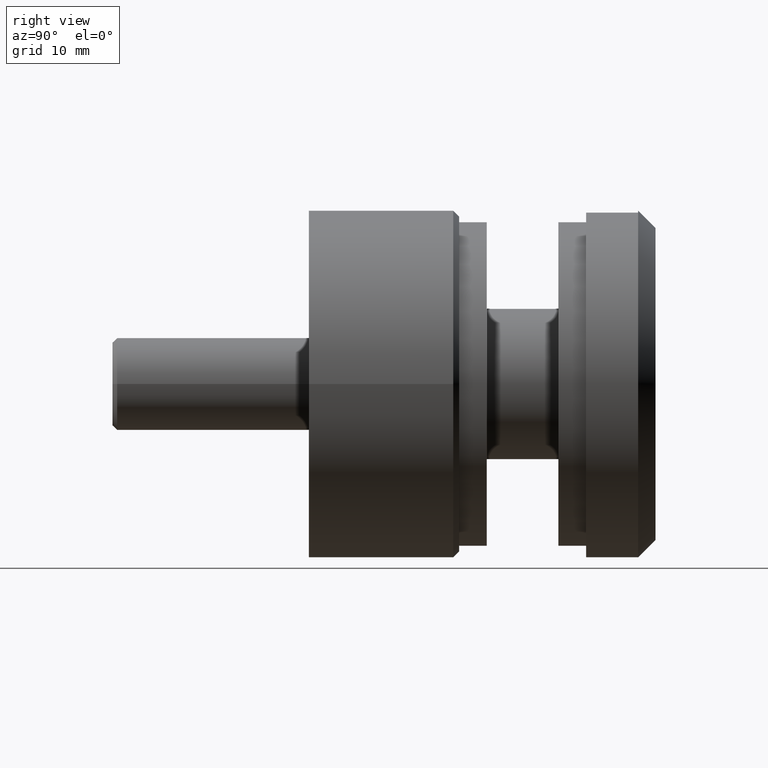
[diagram: clean part render]
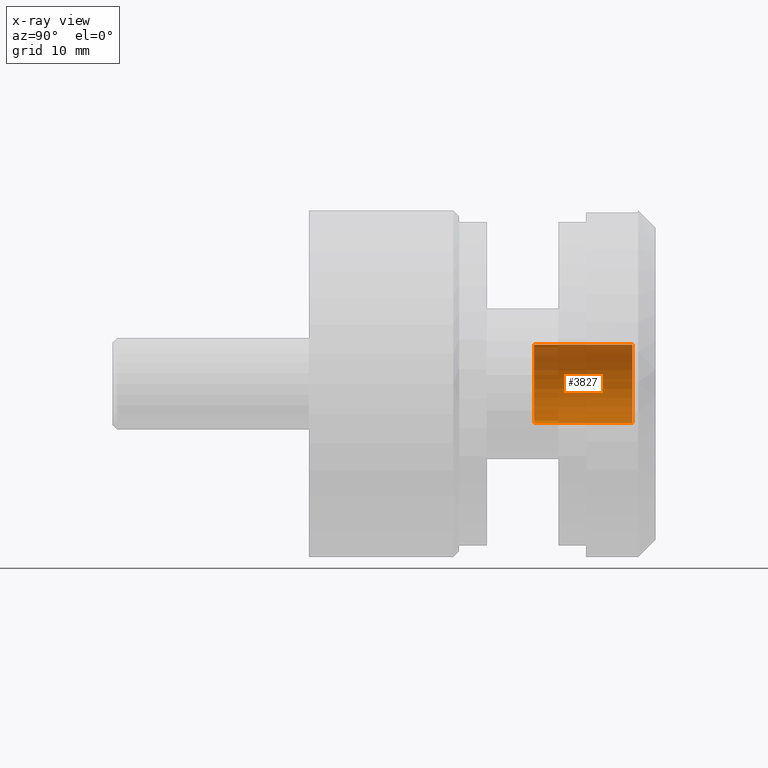
[diagram: x-ray — body ghosted, one internal face saturated and labeled with its STEP entity id]
A machine part, right view, then the same camera in x-ray: the body is ghosted and one INTERNAL B-rep face — a face not visible from any outside direction — is saturated and labeled: STEP entity #3827.
In plain terms, the highlighted cylindrical surface (partial cylindrical patch) has radius 3.4 mm, axis along (-0, -1, -0).
Its self-contained STEP definition (entity closure, byte-faithful):
#218 = FACE_OUTER_BOUND ( 'NONE', #971, .T. ) ;
#263 = CIRCLE ( 'NONE', #821, 3.399999999999997691 ) ;
#284 = DIRECTION ( 'NONE',  ( 0.000000000000000000, 0.000000000000000000, -1.000000000000000000 ) ) ;
#821 = AXIS2_PLACEMENT_3D ( 'NONE', #2677, #7212, #284 ) ;
#971 = EDGE_LOOP ( 'NONE', ( #6207, #3085, #5380, #2761 ) ) ;
#1536 = DIRECTION ( 'NONE',  ( -0.000000000000000000, -1.000000000000000000, -0.000000000000000000 ) ) ;
#1776 = DIRECTION ( 'NONE',  ( 0.000000000000000000, -1.000000000000000000, 0.000000000000000000 ) ) ;
#1791 = CARTESIAN_POINT ( 'NONE',  ( 0.000000000000000000, 0.5000000000000043299, -3.399999999999998135 ) ) ;
#2677 = CARTESIAN_POINT ( 'NONE',  ( 0.000000000000000000, 9.000000000000001776, 0.000000000000000000 ) ) ;
#2761 = ORIENTED_EDGE ( 'NONE', *, *, #11699, .F. ) ;
#3085 = ORIENTED_EDGE ( 'NONE', *, *, #4454, .T. ) ;
#3827 = ADVANCED_FACE ( 'NONE', ( #218 ), #12526, .F. ) ;
#4440 = VERTEX_POINT ( 'NONE', #10370 ) ;
#4454 = EDGE_CURVE ( 'NONE', #7732, #4440, #10778, .T. ) ;
#4556 = VERTEX_POINT ( 'NONE', #1791 ) ;
#5380 = ORIENTED_EDGE ( 'NONE', *, *, #14465, .T. ) ;
#5430 = VERTEX_POINT ( 'NONE', #13012 ) ;
#6089 = AXIS2_PLACEMENT_3D ( 'NONE', #6459, #1776, #10928 ) ;
#6207 = ORIENTED_EDGE ( 'NONE', *, *, #13559, .F. ) ;
#6459 = CARTESIAN_POINT ( 'NONE',  ( 0.000000000000000000, 0.5000000000000043299, 0.000000000000000000 ) ) ;
#7212 = DIRECTION ( 'NONE',  ( -0.000000000000000000, -1.000000000000000000, -0.000000000000000000 ) ) ;
#7277 = CIRCLE ( 'NONE', #6089, 3.399999999999998135 ) ;
#7344 = VECTOR ( 'NONE', #1536, 1000.000000000000000 ) ;
#7441 = VECTOR ( 'NONE', #14061, 1000.000000000000000 ) ;
#7509 = CARTESIAN_POINT ( 'NONE',  ( 4.163799117100998094E-16, 9.000000000000001776, 3.399999999999997691 ) ) ;
#7732 = VERTEX_POINT ( 'NONE', #7509 ) ;
#9150 = DIRECTION ( 'NONE',  ( 0.000000000000000000, 0.000000000000000000, -1.000000000000000000 ) ) ;
#9298 = DIRECTION ( 'NONE',  ( -0.000000000000000000, -1.000000000000000000, -0.000000000000000000 ) ) ;
#9613 = CARTESIAN_POINT ( 'NONE',  ( 4.163799117100998094E-16, 0.000000000000000000, 3.399999999999998135 ) ) ;
#10370 = CARTESIAN_POINT ( 'NONE',  ( 4.163799117100998094E-16, 0.5000000000000043299, 3.399999999999998135 ) ) ;
#10778 = LINE ( 'NONE', #9613, #7441 ) ;
#10928 = DIRECTION ( 'NONE',  ( 0.000000000000000000, 0.000000000000000000, -1.000000000000000000 ) ) ;
#11561 = CARTESIAN_POINT ( 'NONE',  ( 0.000000000000000000, 0.000000000000000000, 0.000000000000000000 ) ) ;
#11588 = AXIS2_PLACEMENT_3D ( 'NONE', #11561, #9298, #9150 ) ;
#11699 = EDGE_CURVE ( 'NONE', #5430, #4556, #13298, .T. ) ;
#12526 = CYLINDRICAL_SURFACE ( 'NONE', #11588, 3.399999999999998135 ) ;
#12936 = CARTESIAN_POINT ( 'NONE',  ( 0.000000000000000000, 0.000000000000000000, -3.399999999999998135 ) ) ;
#13012 = CARTESIAN_POINT ( 'NONE',  ( 0.000000000000000000, 9.000000000000001776, -3.399999999999997691 ) ) ;
#13298 = LINE ( 'NONE', #12936, #7344 ) ;
#13559 = EDGE_CURVE ( 'NONE', #7732, #5430, #263, .T. ) ;
#14061 = DIRECTION ( 'NONE',  ( -0.000000000000000000, -1.000000000000000000, -0.000000000000000000 ) ) ;
#14465 = EDGE_CURVE ( 'NONE', #4440, #4556, #7277, .T. ) ;